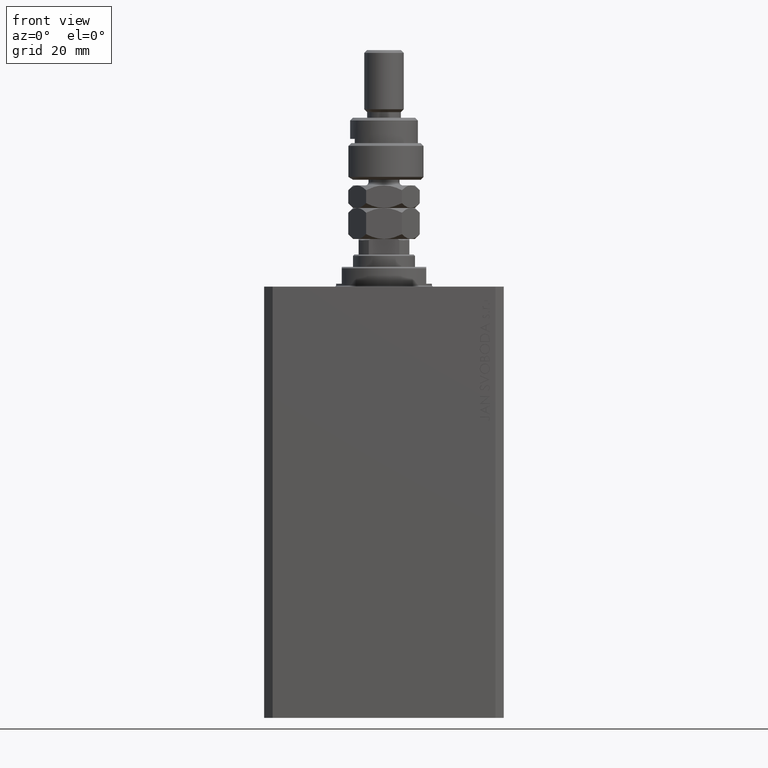
[diagram: clean part render]
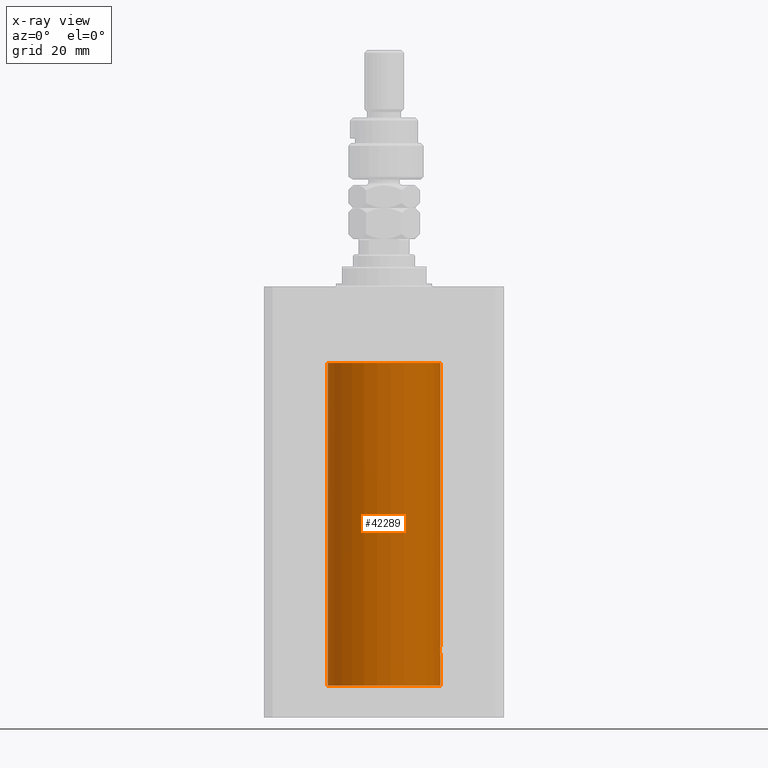
[diagram: x-ray — body ghosted, one internal face saturated and labeled with its STEP entity id]
A machine part, front view, then the same camera in x-ray: the body is ghosted and one INTERNAL B-rep face — a face not visible from any outside direction — is saturated and labeled: STEP entity #42289.
In plain terms, the highlighted cylindrical surface (partial cylindrical patch) has radius 20 mm, axis along (0, 0, 1).
Its self-contained STEP definition (entity closure, byte-faithful):
#328 = CARTESIAN_POINT ( 'NONE',  ( 20.00000000000000000, -0.2642773949967766045, -131.0000000000000000 ) ) ;
#1915 = VECTOR ( 'NONE', #34207, 1000.000000000000000 ) ;
#1916 = CARTESIAN_POINT ( 'NONE',  ( 19.89974874213243439, -1.999999999999655609, -129.0000000000000000 ) ) ;
#2893 = CARTESIAN_POINT ( 'NONE',  ( -20.00000000000000000, 2.449293598294706119E-15, -141.5999999999999943 ) ) ;
#3293 = DIRECTION ( 'NONE',  ( 1.000000000000000000, 0.000000000000000000, 0.000000000000000000 ) ) ;
#3642 = VERTEX_POINT ( 'NONE', #29467 ) ;
#3913 = CARTESIAN_POINT ( 'NONE',  ( 19.90607187811044199, -1.936221525612424221, -129.5177055533667101 ) ) ;
#3988 = DIRECTION ( 'NONE',  ( -0.000000000000000000, -0.000000000000000000, 1.000000000000000000 ) ) ;
#4940 = EDGE_CURVE ( 'NONE', #3642, #12272, #16060, .T. ) ;
#5494 = CARTESIAN_POINT ( 'NONE',  ( 19.92467362751852988, -1.735709893904984202, -127.9978039393057969 ) ) ;
#5619 = EDGE_CURVE ( 'NONE', #11240, #12272, #16694, .T. ) ;
#5736 = CARTESIAN_POINT ( 'NONE',  ( 19.93679035661676835, -1.590502522866568347, -127.7804150277140565 ) ) ;
#5833 = ORIENTED_EDGE ( 'NONE', *, *, #42194, .F. ) ;
#5855 = EDGE_CURVE ( 'NONE', #7709, #35809, #13454, .T. ) ;
#6216 = CARTESIAN_POINT ( 'NONE',  ( 19.94343050116686555, -1.506032346525467247, -127.6775485712697531 ) ) ;
#6445 = CARTESIAN_POINT ( 'NONE',  ( 19.90106531167247539, -1.987021080928413008, -128.7377912701302876 ) ) ;
#6880 = ORIENTED_EDGE ( 'NONE', *, *, #5855, .F. ) ;
#7346 = CARTESIAN_POINT ( 'NONE',  ( 0.000000000000000000, 0.000000000000000000, -141.5999999999999943 ) ) ;
#7709 = VERTEX_POINT ( 'NONE', #12808 ) ;
#7727 = CARTESIAN_POINT ( 'NONE',  ( 20.00000000000000000, 0.000000000000000000, -131.0000000000000000 ) ) ;
#7802 = CYLINDRICAL_SURFACE ( 'NONE', #37170, 20.00000000000000000 ) ;
#9077 = CARTESIAN_POINT ( 'NONE',  ( 19.91915476385079842, -1.797169352086253724, -128.1126628205572047 ) ) ;
#9150 = DIRECTION ( 'NONE',  ( -0.000000000000000000, -0.000000000000000000, 1.000000000000000000 ) ) ;
#9316 = CARTESIAN_POINT ( 'NONE',  ( 20.00000000000000000, -1.553109350199128042E-23, -127.0000000000000000 ) ) ;
#9644 = DIRECTION ( 'NONE',  ( 1.000000000000000000, 0.000000000000000000, 0.000000000000000000 ) ) ;
#9869 = CARTESIAN_POINT ( 'NONE',  ( 20.00000000000000000, 0.000000000000000000, -141.5999999999999943 ) ) ;
#11240 = VERTEX_POINT ( 'NONE', #44032 ) ;
#11310 = CARTESIAN_POINT ( 'NONE',  ( 19.89974874213243439, -1.999999999999655609, -129.0000000000000000 ) ) ;
#11758 = VERTEX_POINT ( 'NONE', #35769 ) ;
#12101 = ORIENTED_EDGE ( 'NONE', *, *, #13733, .T. ) ;
#12272 = VERTEX_POINT ( 'NONE', #33994 ) ;
#12808 = CARTESIAN_POINT ( 'NONE',  ( 20.00000000000000000, -1.553109350199128042E-23, -127.0000000000000000 ) ) ;
#13229 = CARTESIAN_POINT ( 'NONE',  ( 0.000000000000000000, 0.000000000000000000, -27.10000000000000142 ) ) ;
#13454 = LINE ( 'NONE', #9869, #38495 ) ;
#13733 = EDGE_CURVE ( 'NONE', #11758, #35809, #18063, .T. ) ;
#14018 = CARTESIAN_POINT ( 'NONE',  ( 19.92464121718640868, -1.736076547215880783, -130.0015422135783751 ) ) ;
#15259 = ORIENTED_EDGE ( 'NONE', *, *, #33562, .T. ) ;
#16060 = LINE ( 'NONE', #27012, #38457 ) ;
#16694 = B_SPLINE_CURVE_WITH_KNOTS ( 'NONE', 3,
 ( #11310, #46686, #21167, #3913, #20931, #35243, #14018, #35712, #24973, #25845, #18455, #32992, #328, #7727 ),
 .UNSPECIFIED., .F., .F.,
 ( 4, 2, 2, 2, 2, 2, 4 ),
 ( 0.009386006266958986724, 0.009776776943204312439, 0.01016754761944963815, 0.01055831829569496387, 0.01094908897194028959, 0.01173063032443094102, 0.01251217167692159245 ),
 .UNSPECIFIED. ) ;
#18063 = CIRCLE ( 'NONE', #31771, 20.00000000000000000 ) ;
#18455 = CARTESIAN_POINT ( 'NONE',  ( 19.97604812261521090, -1.007662572237612242, -130.7471082404733238 ) ) ;
#19005 = CARTESIAN_POINT ( 'NONE',  ( 0.000000000000000000, 0.000000000000000000, -141.5999999999999943 ) ) ;
#20280 = CARTESIAN_POINT ( 'NONE',  ( 19.89974874213243794, -1.999999999999656053, -128.8677987384940593 ) ) ;
#20516 = CARTESIAN_POINT ( 'NONE',  ( 20.00000000000000355, -0.2612062508298595431, -127.0000000000000568 ) ) ;
#20931 = CARTESIAN_POINT ( 'NONE',  ( 19.90981966846454654, -1.897793276286219299, -129.6446336132284216 ) ) ;
#21167 = CARTESIAN_POINT ( 'NONE',  ( 19.90106527362735278, -1.987020983172496980, -129.2621458537986143 ) ) ;
#22267 = DIRECTION ( 'NONE',  ( -0.000000000000000000, -0.000000000000000000, 1.000000000000000000 ) ) ;
#23521 = ORIENTED_EDGE ( 'NONE', *, *, #5619, .T. ) ;
#24973 = CARTESIAN_POINT ( 'NONE',  ( 19.94337316053471554, -1.506783194222110600, -130.3215850766146104 ) ) ;
#25760 = EDGE_LOOP ( 'NONE', ( #5833, #29847, #12101, #6880, #15259, #23521, #32973 ) ) ;
#25845 = CARTESIAN_POINT ( 'NONE',  ( 19.96296989966237589, -1.230425635331419354, -130.5981187666770609 ) ) ;
#27012 = CARTESIAN_POINT ( 'NONE',  ( 20.00000000000000000, 0.000000000000000000, -141.5999999999999943 ) ) ;
#27286 = LINE ( 'NONE', #41367, #1915 ) ;
#27656 = CARTESIAN_POINT ( 'NONE',  ( 19.90983652367462042, -1.897617924364793929, -128.3548402033379432 ) ) ;
#27745 = DIRECTION ( 'NONE',  ( 0.000000000000000000, 0.000000000000000000, 1.000000000000000000 ) ) ;
#28796 = DIRECTION ( 'NONE',  ( 0.000000000000000000, 0.000000000000000000, 1.000000000000000000 ) ) ;
#29467 = CARTESIAN_POINT ( 'NONE',  ( 20.00000000000000000, 0.000000000000000000, -141.5999999999999943 ) ) ;
#29847 = ORIENTED_EDGE ( 'NONE', *, *, #34688, .T. ) ;
#30861 = CARTESIAN_POINT ( 'NONE',  ( 20.00000000000000000, 0.000000000000000000, -27.10000000000000142 ) ) ;
#31771 = AXIS2_PLACEMENT_3D ( 'NONE', #13229, #27745, #9644 ) ;
#32973 = ORIENTED_EDGE ( 'NONE', *, *, #4940, .F. ) ;
#32992 = CARTESIAN_POINT ( 'NONE',  ( 19.99450726301181192, -0.5268413099739839289, -130.9468459871092989 ) ) ;
#33562 = EDGE_CURVE ( 'NONE', #7709, #11240, #38634, .T. ) ;
#33994 = CARTESIAN_POINT ( 'NONE',  ( 20.00000000000000000, 0.000000000000000000, -131.0000000000000000 ) ) ;
#34207 = DIRECTION ( 'NONE',  ( -0.000000000000000000, -0.000000000000000000, 1.000000000000000000 ) ) ;
#34688 = EDGE_CURVE ( 'NONE', #41910, #11758, #27286, .T. ) ;
#34822 = CARTESIAN_POINT ( 'NONE',  ( 19.96304361591165488, -1.229269670911796952, -127.4009562492831549 ) ) ;
#35059 = CARTESIAN_POINT ( 'NONE',  ( 19.90607912840593485, -1.936147476084614905, -128.4819853815528177 ) ) ;
#35243 = CARTESIAN_POINT ( 'NONE',  ( 19.91912874598169125, -1.797456133345314511, -129.8867487037038302 ) ) ;
#35712 = CARTESIAN_POINT ( 'NONE',  ( 19.93674030556023880, -1.591123942389848001, -130.2187588700502943 ) ) ;
#35769 = CARTESIAN_POINT ( 'NONE',  ( -20.00000000000000000, 2.449293598294706119E-15, -27.10000000000000142 ) ) ;
#35809 = VERTEX_POINT ( 'NONE', #30861 ) ;
#37170 = AXIS2_PLACEMENT_3D ( 'NONE', #19005, #3988, #44517 ) ;
#38457 = VECTOR ( 'NONE', #22267, 1000.000000000000000 ) ;
#38495 = VECTOR ( 'NONE', #9150, 1000.000000000000000 ) ;
#38634 = B_SPLINE_CURVE_WITH_KNOTS ( 'NONE', 3,
 ( #9316, #20516, #41742, #41974, #34822, #6216, #5736, #5494, #9077, #27656, #35059, #6445, #20280, #1916 ),
 .UNSPECIFIED., .F., .F.,
 ( 4, 2, 2, 2, 2, 2, 4 ),
 ( 0.006256819553330524031, 0.007039116231737640138, 0.007821412910144756245, 0.008212561249348312997, 0.008603709588551871484, 0.008994857927755429972, 0.009386006266958986724 ),
 .UNSPECIFIED. ) ;
#39497 = AXIS2_PLACEMENT_3D ( 'NONE', #7346, #28796, #3293 ) ;
#40239 = CIRCLE ( 'NONE', #39497, 20.00000000000000000 ) ;
#41184 = FACE_OUTER_BOUND ( 'NONE', #25760, .T. ) ;
#41367 = CARTESIAN_POINT ( 'NONE',  ( -20.00000000000000000, 2.449293598294706119E-15, -141.5999999999999943 ) ) ;
#41742 = CARTESIAN_POINT ( 'NONE',  ( 19.99457156948952630, -0.5245703965536842039, -127.0525002876190541 ) ) ;
#41910 = VERTEX_POINT ( 'NONE', #2893 ) ;
#41974 = CARTESIAN_POINT ( 'NONE',  ( 19.97612863609106881, -1.006156579624595482, -127.2519787850422688 ) ) ;
#42194 = EDGE_CURVE ( 'NONE', #41910, #3642, #40239, .T. ) ;
#42289 = ADVANCED_FACE ( 'NONE', ( #41184 ), #7802, .F. ) ;
#44032 = CARTESIAN_POINT ( 'NONE',  ( 19.89974874213243439, -1.999999999999655609, -129.0000000000000000 ) ) ;
#44517 = DIRECTION ( 'NONE',  ( 1.000000000000000000, 0.000000000000000000, 0.000000000000000000 ) ) ;
#46686 = CARTESIAN_POINT ( 'NONE',  ( 19.89974874213243083, -1.999999999999655609, -129.1320736180661584 ) ) ;